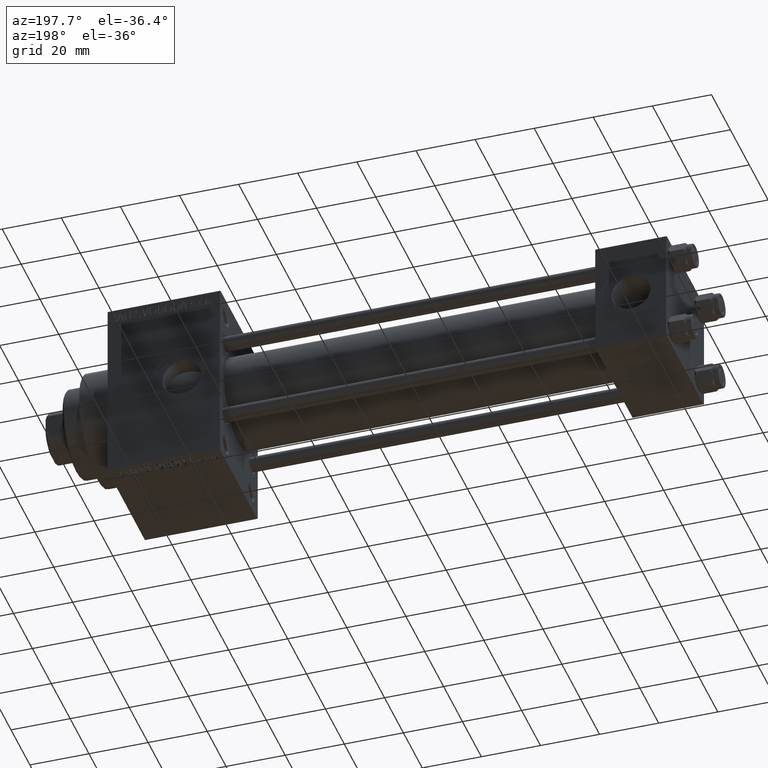
[diagram: clean part render]
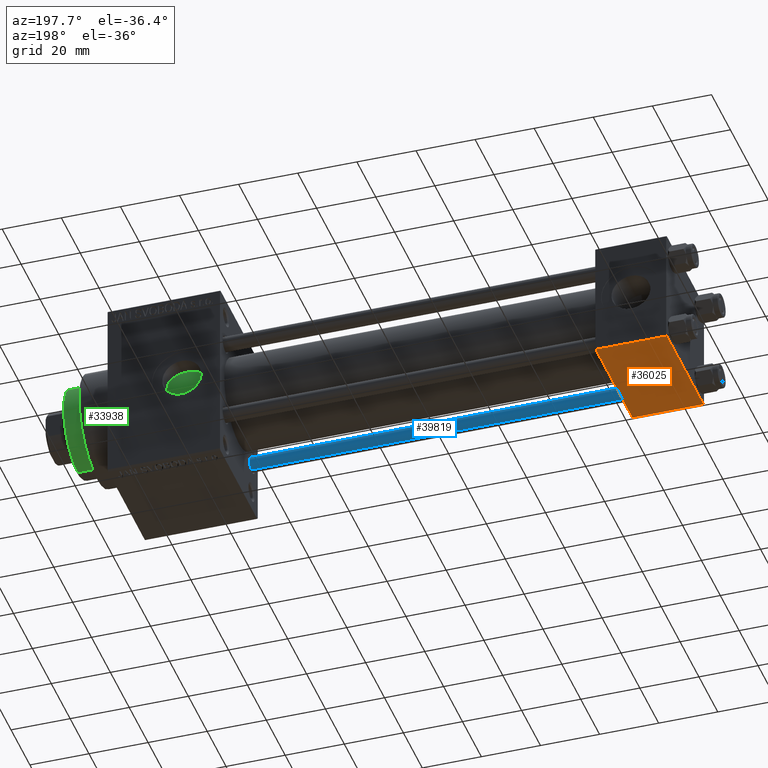
[diagram: same view with three faces highlighted in distinct colors, each labeled with its STEP entity id]
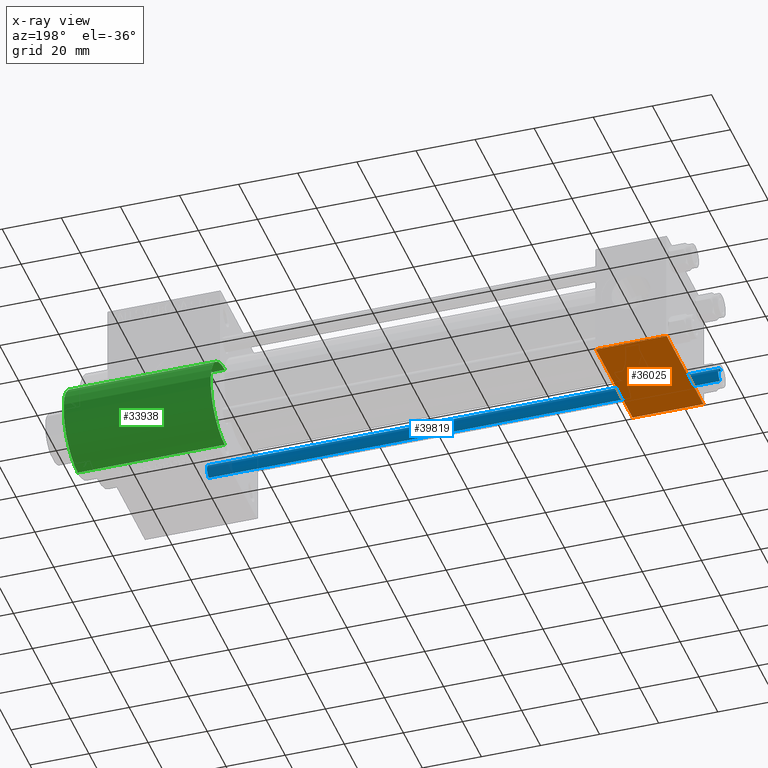
[diagram: x-ray of the same camera — body ghosted, the three highlighted faces saturated]
A machine part, auxiliary view with three faces highlighted in distinct colors.
The next image is the same camera in x-ray (body ghosted, the three faces saturated) — at least one of them is partly hidden behind the body in this view.
Their STEP definitions:

[orange] entity #36025 — the highlighted planar face has unit normal (0, -0, -1).
#173 = PLANE ( 'NONE',  #33901 ) ;
#2686 = CARTESIAN_POINT ( 'NONE',  ( 24.00000000000000000, 19.50000000000000711, -20.00000000000000711 ) ) ;
#3877 = CARTESIAN_POINT ( 'NONE',  ( 24.00000000000000000, 19.50000000000000711, -20.00000000000000711 ) ) ;
#4281 = CARTESIAN_POINT ( 'NONE',  ( 0.000000000000000000, -19.50000000000000711, -20.00000000000000000 ) ) ;
#5674 = LINE ( 'NONE', #9122, #8166 ) ;
#6622 = EDGE_CURVE ( 'NONE', #16830, #10616, #34120, .T. ) ;
#6828 = DIRECTION ( 'NONE',  ( 0.000000000000000000, -1.000000000000000000, 1.734723475976807094E-16 ) ) ;
#7337 = DIRECTION ( 'NONE',  ( 0.000000000000000000, -1.734723475976806848E-16, -1.000000000000000000 ) ) ;
#8166 = VECTOR ( 'NONE', #6828, 1000.000000000000000 ) ;
#8985 = LINE ( 'NONE', #12913, #48655 ) ;
#9122 = CARTESIAN_POINT ( 'NONE',  ( 24.00000000000000000, 20.00000000000000000, -20.00000000000000711 ) ) ;
#9587 = DIRECTION ( 'NONE',  ( 1.000000000000000000, 0.000000000000000000, 0.000000000000000000 ) ) ;
#10616 = VERTEX_POINT ( 'NONE', #25438 ) ;
#11643 = VERTEX_POINT ( 'NONE', #3877 ) ;
#12453 = CARTESIAN_POINT ( 'NONE',  ( 24.00000000000000000, -19.50000000000000711, -20.00000000000000000 ) ) ;
#12913 = CARTESIAN_POINT ( 'NONE',  ( 0.000000000000000000, 20.00000000000000000, -20.00000000000000711 ) ) ;
#13063 = EDGE_CURVE ( 'NONE', #38171, #10616, #8985, .T. ) ;
#16830 = VERTEX_POINT ( 'NONE', #12453 ) ;
#16849 = DIRECTION ( 'NONE',  ( 0.000000000000000000, -1.000000000000000000, 1.734723475976807094E-16 ) ) ;
#16904 = CARTESIAN_POINT ( 'NONE',  ( 0.000000000000000000, 19.50000000000000711, -20.00000000000000711 ) ) ;
#20704 = VECTOR ( 'NONE', #9587, 1000.000000000000000 ) ;
#25438 = CARTESIAN_POINT ( 'NONE',  ( 0.000000000000000000, -19.50000000000000711, -20.00000000000000000 ) ) ;
#25817 = DIRECTION ( 'NONE',  ( 0.000000000000000000, 1.000000000000000000, -1.734723475976806848E-16 ) ) ;
#28115 = VECTOR ( 'NONE', #41498, 1000.000000000000000 ) ;
#29300 = CARTESIAN_POINT ( 'NONE',  ( 24.00000000000000000, 20.00000000000000000, -20.00000000000000711 ) ) ;
#30150 = ORIENTED_EDGE ( 'NONE', *, *, #6622, .T. ) ;
#31482 = ORIENTED_EDGE ( 'NONE', *, *, #13063, .F. ) ;
#33901 = AXIS2_PLACEMENT_3D ( 'NONE', #29300, #7337, #25817 ) ;
#34120 = LINE ( 'NONE', #4281, #28115 ) ;
#36025 = ADVANCED_FACE ( 'NONE', ( #37168 ), #173, .T. ) ;
#37168 = FACE_OUTER_BOUND ( 'NONE', #38202, .T. ) ;
#38171 = VERTEX_POINT ( 'NONE', #16904 ) ;
#38202 = EDGE_LOOP ( 'NONE', ( #31482, #42900, #44562, #30150 ) ) ;
#40168 = LINE ( 'NONE', #2686, #20704 ) ;
#41498 = DIRECTION ( 'NONE',  ( -1.000000000000000000, 0.000000000000000000, 0.000000000000000000 ) ) ;
#42900 = ORIENTED_EDGE ( 'NONE', *, *, #44671, .T. ) ;
#44562 = ORIENTED_EDGE ( 'NONE', *, *, #48803, .T. ) ;
#44671 = EDGE_CURVE ( 'NONE', #38171, #11643, #40168, .T. ) ;
#48655 = VECTOR ( 'NONE', #16849, 1000.000000000000000 ) ;
#48803 = EDGE_CURVE ( 'NONE', #11643, #16830, #5674, .T. ) ;

[blue] entity #39819 — the highlighted cylindrical surface (edge-blend (fillet) strip) has radius 2.5 mm, axis along (-1, 0, 0).
#203 = DIRECTION ( 'NONE',  ( 1.000000000000000000, 0.000000000000000000, 0.000000000000000000 ) ) ;
#885 = VERTEX_POINT ( 'NONE', #20281 ) ;
#3439 = DIRECTION ( 'NONE',  ( -0.000000000000000000, -0.000000000000000000, -1.000000000000000000 ) ) ;
#3678 = CARTESIAN_POINT ( 'NONE',  ( 0.000000000000000000, 0.000000000000000000, 174.0000000000000000 ) ) ;
#4049 = CARTESIAN_POINT ( 'NONE',  ( 2.500000000000000000, 3.061616997868383141E-16, 173.5000000000000000 ) ) ;
#4149 = DIRECTION ( 'NONE',  ( -0.000000000000000000, -0.000000000000000000, 1.000000000000000000 ) ) ;
#7118 = CARTESIAN_POINT ( 'NONE',  ( 0.000000000000000000, 0.000000000000000000, 0.5000000000000281997 ) ) ;
#11803 = DIRECTION ( 'NONE',  ( -0.000000000000000000, -0.000000000000000000, -1.000000000000000000 ) ) ;
#11996 = ORIENTED_EDGE ( 'NONE', *, *, #39814, .F. ) ;
#13653 = CARTESIAN_POINT ( 'NONE',  ( 0.000000000000000000, 0.000000000000000000, 173.5000000000000000 ) ) ;
#15490 = LINE ( 'NONE', #37703, #37872 ) ;
#15968 = EDGE_CURVE ( 'NONE', #885, #29731, #30557, .T. ) ;
#16453 = VECTOR ( 'NONE', #38416, 1000.000000000000000 ) ;
#18175 = AXIS2_PLACEMENT_3D ( 'NONE', #3678, #11803, #18699 ) ;
#18699 = DIRECTION ( 'NONE',  ( -1.000000000000000000, 0.000000000000000000, 0.000000000000000000 ) ) ;
#19881 = CARTESIAN_POINT ( 'NONE',  ( 2.500000000000000000, 3.061616997868383141E-16, 0.5000000000000281997 ) ) ;
#20281 = CARTESIAN_POINT ( 'NONE',  ( -2.500000000000000000, 0.000000000000000000, 173.5000000000000000 ) ) ;
#21113 = EDGE_CURVE ( 'NONE', #39244, #885, #33181, .T. ) ;
#21536 = DIRECTION ( 'NONE',  ( 0.000000000000000000, 0.000000000000000000, -1.000000000000000000 ) ) ;
#22966 = AXIS2_PLACEMENT_3D ( 'NONE', #7118, #4149, #203 ) ;
#23004 = CARTESIAN_POINT ( 'NONE',  ( -2.500000000000000000, 0.000000000000000000, 0.5000000000000281997 ) ) ;
#28652 = EDGE_LOOP ( 'NONE', ( #11996, #32770, #33951, #40921 ) ) ;
#29731 = VERTEX_POINT ( 'NONE', #23004 ) ;
#30557 = LINE ( 'NONE', #45588, #16453 ) ;
#32770 = ORIENTED_EDGE ( 'NONE', *, *, #21113, .T. ) ;
#33181 = CIRCLE ( 'NONE', #45781, 2.500000000000000000 ) ;
#33951 = ORIENTED_EDGE ( 'NONE', *, *, #15968, .T. ) ;
#34016 = FACE_OUTER_BOUND ( 'NONE', #28652, .T. ) ;
#36597 = DIRECTION ( 'NONE',  ( 1.000000000000000000, 0.000000000000000000, 0.000000000000000000 ) ) ;
#37703 = CARTESIAN_POINT ( 'NONE',  ( 2.500000000000000000, 3.061616997868383141E-16, 174.0000000000000000 ) ) ;
#37872 = VECTOR ( 'NONE', #3439, 1000.000000000000000 ) ;
#37997 = VERTEX_POINT ( 'NONE', #19881 ) ;
#38416 = DIRECTION ( 'NONE',  ( -0.000000000000000000, -0.000000000000000000, -1.000000000000000000 ) ) ;
#39244 = VERTEX_POINT ( 'NONE', #4049 ) ;
#39515 = CIRCLE ( 'NONE', #22966, 2.500000000000000000 ) ;
#39814 = EDGE_CURVE ( 'NONE', #39244, #37997, #15490, .T. ) ;
#39819 = ADVANCED_FACE ( 'NONE', ( #34016 ), #48800, .T. ) ;
#40921 = ORIENTED_EDGE ( 'NONE', *, *, #41953, .T. ) ;
#41953 = EDGE_CURVE ( 'NONE', #29731, #37997, #39515, .T. ) ;
#45588 = CARTESIAN_POINT ( 'NONE',  ( -2.500000000000000000, 0.000000000000000000, 174.0000000000000000 ) ) ;
#45781 = AXIS2_PLACEMENT_3D ( 'NONE', #13653, #21536, #36597 ) ;
#48800 = CYLINDRICAL_SURFACE ( 'NONE', #18175, 2.500000000000000000 ) ;

[green] entity #33938 — the highlighted cylindrical surface (partial cylindrical patch) has radius 15 mm, axis along (-1, 0, 0).
#750 = ORIENTED_EDGE ( 'NONE', *, *, #30305, .F. ) ;
#2282 = LINE ( 'NONE', #9936, #30778 ) ;
#4014 = ORIENTED_EDGE ( 'NONE', *, *, #35120, .T. ) ;
#5530 = AXIS2_PLACEMENT_3D ( 'NONE', #7566, #37636, #45779 ) ;
#6214 = CARTESIAN_POINT ( 'NONE',  ( 0.000000000000000000, 0.000000000000000000, 49.75999999999998380 ) ) ;
#6941 = VERTEX_POINT ( 'NONE', #23424 ) ;
#7566 = CARTESIAN_POINT ( 'NONE',  ( 0.000000000000000000, 0.000000000000000000, 43.25999999999999801 ) ) ;
#9936 = CARTESIAN_POINT ( 'NONE',  ( -15.00000000000000000, 0.000000000000000000, 43.25999999999999801 ) ) ;
#10102 = ORIENTED_EDGE ( 'NONE', *, *, #18431, .T. ) ;
#10537 = EDGE_CURVE ( 'NONE', #17232, #32147, #21820, .T. ) ;
#11444 = DIRECTION ( 'NONE',  ( 0.000000000000000000, 0.000000000000000000, 1.000000000000000000 ) ) ;
#11840 = CARTESIAN_POINT ( 'NONE',  ( 15.00000000000000000, 1.836970198721029589E-15, 43.25999999999999801 ) ) ;
#15761 = CIRCLE ( 'NONE', #44140, 15.00000000000000000 ) ;
#16796 = DIRECTION ( 'NONE',  ( 0.000000000000000000, 0.000000000000000000, -1.000000000000000000 ) ) ;
#17232 = VERTEX_POINT ( 'NONE', #42869 ) ;
#18358 = EDGE_LOOP ( 'NONE', ( #750, #36860, #4014, #10102 ) ) ;
#18431 = EDGE_CURVE ( 'NONE', #6941, #19860, #15761, .T. ) ;
#19717 = DIRECTION ( 'NONE',  ( -0.000000000000000000, -0.000000000000000000, -1.000000000000000000 ) ) ;
#19860 = VERTEX_POINT ( 'NONE', #36874 ) ;
#21820 = CIRCLE ( 'NONE', #26554, 15.00000000000000000 ) ;
#23082 = CYLINDRICAL_SURFACE ( 'NONE', #5530, 15.00000000000000000 ) ;
#23424 = CARTESIAN_POINT ( 'NONE',  ( -15.00000000000000000, 0.000000000000000000, 0.000000000000000000 ) ) ;
#23662 = LINE ( 'NONE', #11840, #41284 ) ;
#24969 = DIRECTION ( 'NONE',  ( -0.000000000000000000, -0.000000000000000000, -1.000000000000000000 ) ) ;
#26554 = AXIS2_PLACEMENT_3D ( 'NONE', #6214, #16796, #39243 ) ;
#30305 = EDGE_CURVE ( 'NONE', #17232, #19860, #23662, .T. ) ;
#30746 = FACE_OUTER_BOUND ( 'NONE', #18358, .T. ) ;
#30778 = VECTOR ( 'NONE', #24969, 1000.000000000000000 ) ;
#31174 = DIRECTION ( 'NONE',  ( 1.000000000000000000, 0.000000000000000000, 0.000000000000000000 ) ) ;
#32147 = VERTEX_POINT ( 'NONE', #43897 ) ;
#33938 = ADVANCED_FACE ( 'NONE', ( #30746 ), #23082, .T. ) ;
#35120 = EDGE_CURVE ( 'NONE', #32147, #6941, #2282, .T. ) ;
#36860 = ORIENTED_EDGE ( 'NONE', *, *, #10537, .T. ) ;
#36874 = CARTESIAN_POINT ( 'NONE',  ( 15.00000000000000000, 1.836970198721029589E-15, 0.000000000000000000 ) ) ;
#37636 = DIRECTION ( 'NONE',  ( -0.000000000000000000, -0.000000000000000000, -1.000000000000000000 ) ) ;
#37842 = CARTESIAN_POINT ( 'NONE',  ( 0.000000000000000000, 0.000000000000000000, 0.000000000000000000 ) ) ;
#39243 = DIRECTION ( 'NONE',  ( 1.000000000000000000, 0.000000000000000000, 0.000000000000000000 ) ) ;
#41284 = VECTOR ( 'NONE', #19717, 1000.000000000000000 ) ;
#42869 = CARTESIAN_POINT ( 'NONE',  ( 15.00000000000000000, 1.836970198721029589E-15, 49.75999999999998380 ) ) ;
#43897 = CARTESIAN_POINT ( 'NONE',  ( -15.00000000000000000, 0.000000000000000000, 49.75999999999998380 ) ) ;
#44140 = AXIS2_PLACEMENT_3D ( 'NONE', #37842, #11444, #31174 ) ;
#45779 = DIRECTION ( 'NONE',  ( -1.000000000000000000, 0.000000000000000000, 0.000000000000000000 ) ) ;